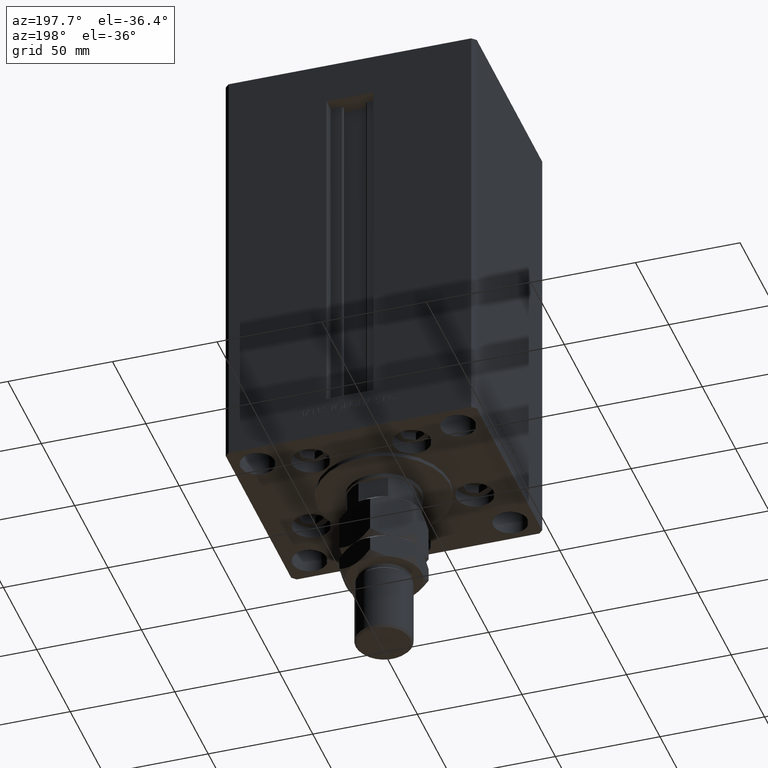
[diagram: clean part render]
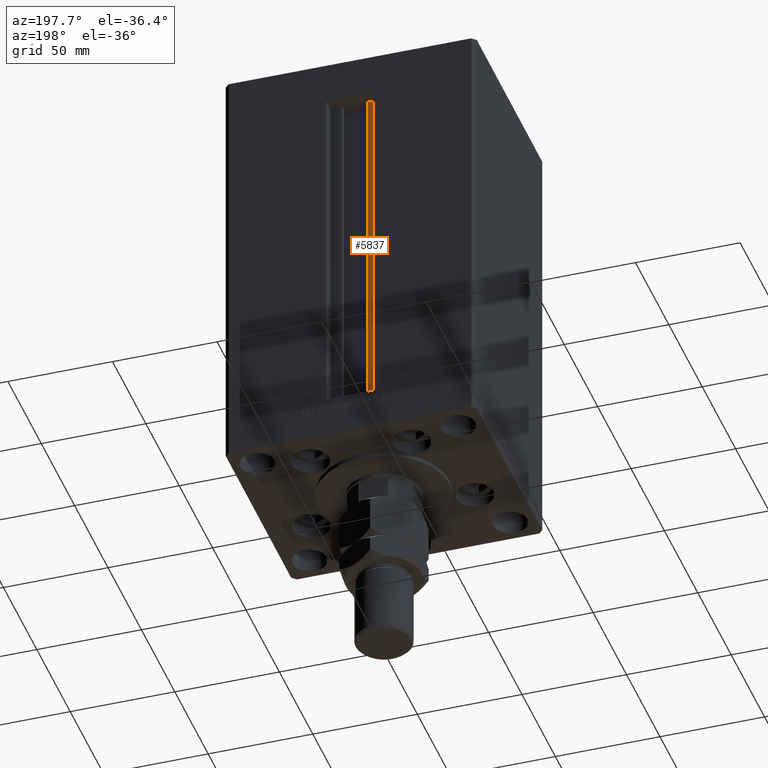
[diagram: same view with one face highlighted and labeled with its STEP entity id]
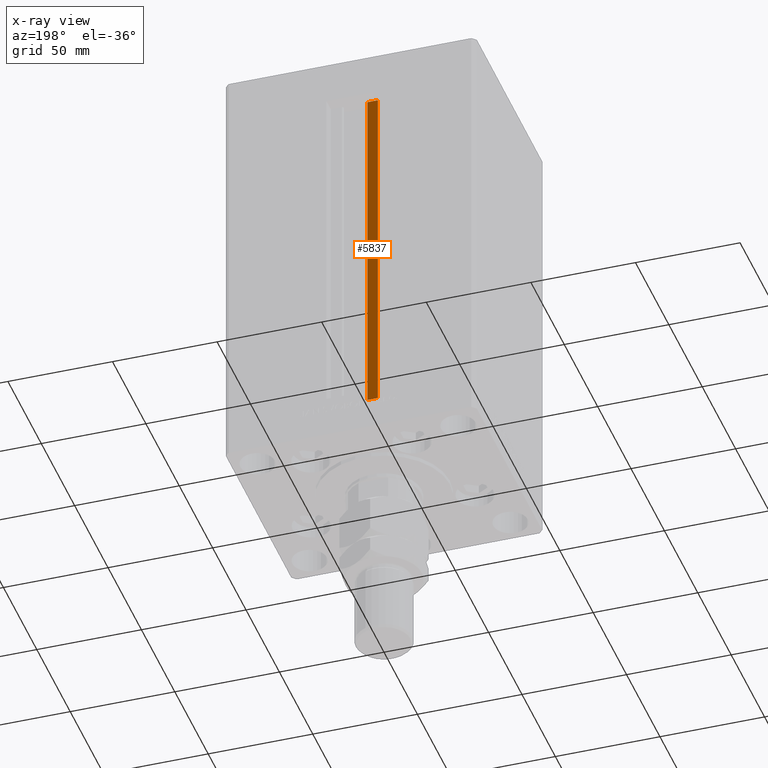
[diagram: x-ray of the same camera — body ghosted, the highlighted face saturated]
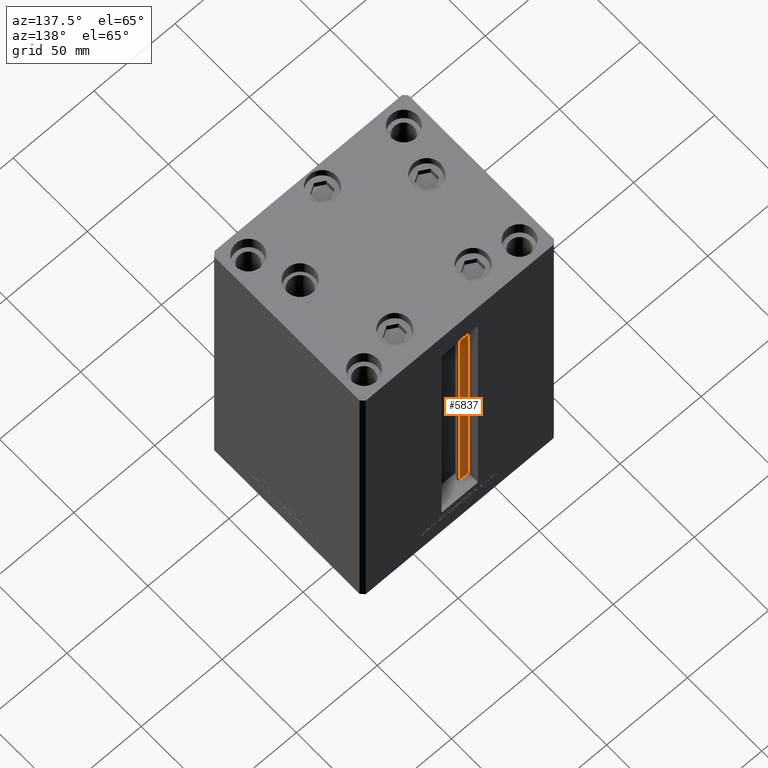
[diagram: same view with one face highlighted and labeled with its STEP entity id]
A machine part, auxiliary view. The second image highlights one B-rep face of the part: STEP entity #5837.
The next image is the same camera in x-ray: the body ghosted, the highlighted face saturated — about 0% of this face is hidden behind the body in this view.
A second angle (auxiliary view) of the same face is appended — the face is thin or edge-on in the first view.
In plain terms, the highlighted planar face has unit normal (0, -1, 0).
Its self-contained STEP definition (entity closure, byte-faithful):
#1869 = VECTOR ( 'NONE', #31649, 1000.000000000000000 ) ;
#2239 = DIRECTION ( 'NONE',  ( 0.000000000000000000, 0.000000000000000000, -1.000000000000000000 ) ) ;
#2812 = LINE ( 'NONE', #41866, #11870 ) ;
#5837 = ADVANCED_FACE ( 'NONE', ( #37430 ), #33839, .F. ) ;
#7306 = EDGE_CURVE ( 'NONE', #29276, #9111, #28352, .T. ) ;
#8522 = CARTESIAN_POINT ( 'NONE',  ( -11.25000000000000178, 44.50000000000000000, 0.000000000000000000 ) ) ;
#8580 = VERTEX_POINT ( 'NONE', #15077 ) ;
#9111 = VERTEX_POINT ( 'NONE', #24770 ) ;
#10465 = VECTOR ( 'NONE', #44019, 1000.000000000000000 ) ;
#11226 = AXIS2_PLACEMENT_3D ( 'NONE', #13547, #14569, #2239 ) ;
#11870 = VECTOR ( 'NONE', #13623, 1000.000000000000000 ) ;
#12259 = VERTEX_POINT ( 'NONE', #12439 ) ;
#12439 = CARTESIAN_POINT ( 'NONE',  ( -11.25000000000000178, 44.50000000000000000, 168.5000000000000000 ) ) ;
#13212 = EDGE_LOOP ( 'NONE', ( #36538, #36035, #22325, #26410 ) ) ;
#13547 = CARTESIAN_POINT ( 'NONE',  ( -6.183333333334001480, 44.50000000000000000, 0.000000000000000000 ) ) ;
#13623 = DIRECTION ( 'NONE',  ( 1.000000000000000000, -0.000000000000000000, -0.000000000000000000 ) ) ;
#14569 = DIRECTION ( 'NONE',  ( 0.000000000000000000, -1.000000000000000000, -0.000000000000000000 ) ) ;
#15077 = CARTESIAN_POINT ( 'NONE',  ( -11.25000000000000178, 44.50000000000000000, 0.000000000000000000 ) ) ;
#16535 = CARTESIAN_POINT ( 'NONE',  ( -6.183333333334001480, 44.50000000000000000, 0.000000000000000000 ) ) ;
#22325 = ORIENTED_EDGE ( 'NONE', *, *, #27021, .T. ) ;
#24770 = CARTESIAN_POINT ( 'NONE',  ( -6.183333333334001480, 44.50000000000000000, 168.5000000000000000 ) ) ;
#26410 = ORIENTED_EDGE ( 'NONE', *, *, #26550, .F. ) ;
#26550 = EDGE_CURVE ( 'NONE', #9111, #12259, #46923, .T. ) ;
#26657 = DIRECTION ( 'NONE',  ( -1.000000000000000000, 0.000000000000000000, 0.000000000000000000 ) ) ;
#27021 = EDGE_CURVE ( 'NONE', #8580, #12259, #43198, .T. ) ;
#28352 = LINE ( 'NONE', #16535, #10465 ) ;
#29276 = VERTEX_POINT ( 'NONE', #38325 ) ;
#31649 = DIRECTION ( 'NONE',  ( -0.000000000000000000, -0.000000000000000000, 1.000000000000000000 ) ) ;
#33839 = PLANE ( 'NONE',  #11226 ) ;
#36035 = ORIENTED_EDGE ( 'NONE', *, *, #42671, .F. ) ;
#36538 = ORIENTED_EDGE ( 'NONE', *, *, #7306, .F. ) ;
#37430 = FACE_OUTER_BOUND ( 'NONE', #13212, .T. ) ;
#38325 = CARTESIAN_POINT ( 'NONE',  ( -6.183333333334001480, 44.50000000000000000, 0.000000000000000000 ) ) ;
#38457 = CARTESIAN_POINT ( 'NONE',  ( 0.000000000000000000, 44.50000000000000000, 168.5000000000000000 ) ) ;
#41866 = CARTESIAN_POINT ( 'NONE',  ( -6.183333333334001480, 44.50000000000000000, 0.000000000000000000 ) ) ;
#42671 = EDGE_CURVE ( 'NONE', #8580, #29276, #2812, .T. ) ;
#43198 = LINE ( 'NONE', #8522, #1869 ) ;
#43721 = VECTOR ( 'NONE', #26657, 1000.000000000000000 ) ;
#44019 = DIRECTION ( 'NONE',  ( -0.000000000000000000, -0.000000000000000000, 1.000000000000000000 ) ) ;
#46923 = LINE ( 'NONE', #38457, #43721 ) ;